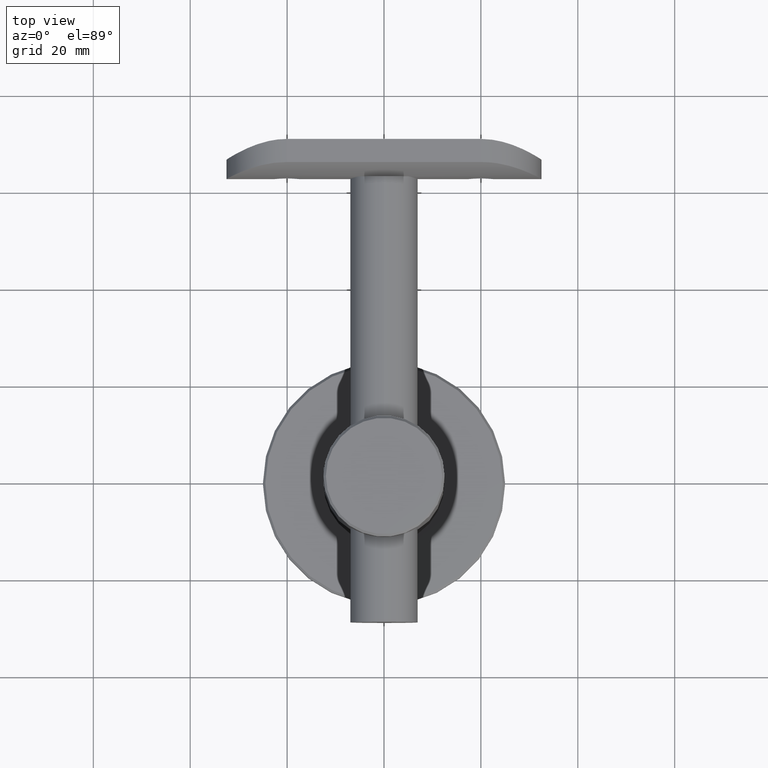
[diagram: clean part render]
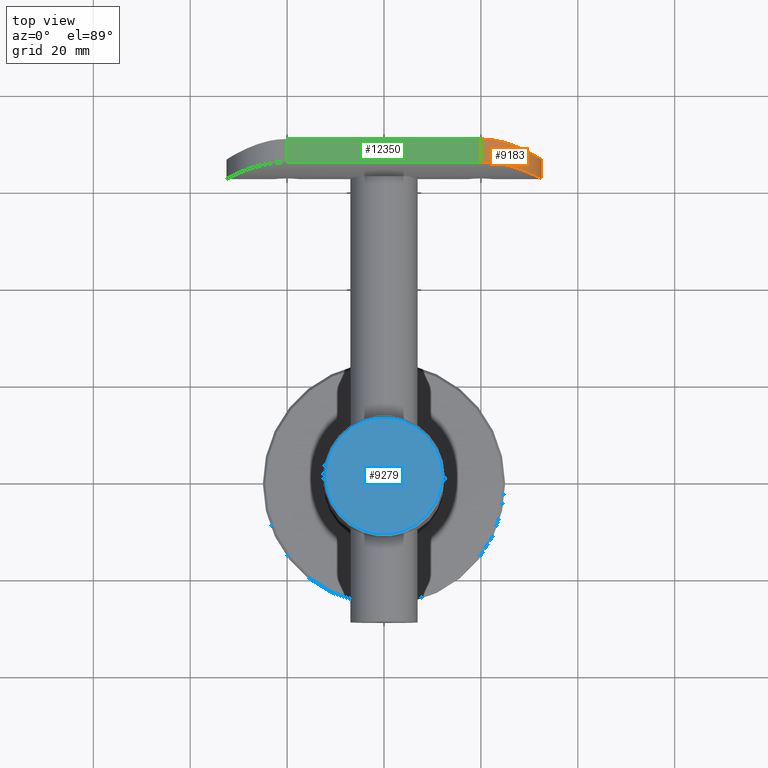
[diagram: same view with three faces highlighted in distinct colors, each labeled with its STEP entity id]
A machine part, top view with three faces highlighted in distinct colors.
Their STEP definitions:

[orange] entity #9183 — the highlighted cylindrical surface (partial cylindrical patch) has radius 12.5 mm, axis along (0, 1, 0).
#16 = DIRECTION ( 'NONE',  ( -3.645542167638208600E-016, 1.000000000000000000, -0.0000000000000000000 ) ) ;
#179 = DIRECTION ( 'NONE',  ( -1.000000000000000000, 3.816391647148975600E-016, 0.0000000000000000000 ) ) ;
#409 = CARTESIAN_POINT ( 'NONE',  ( 9.919985569846220500, 6.456967504733635900, -27.64830385797706600 ) ) ;
#608 = CARTESIAN_POINT ( 'NONE',  ( 5.620677554943399400, 4.744079628429568100, -31.19483348254707900 ) ) ;
#1202 = CARTESIAN_POINT ( 'NONE',  ( 12.50000000000000000, 3.318729470161015300, -20.00000000000000400 ) ) ;
#1655 = CARTESIAN_POINT ( 'NONE',  ( 0.0000000000000000000, 3.318729470161020200, -20.00000000000000400 ) ) ;
#1804 = EDGE_LOOP ( 'NONE', ( #3065, #16433, #5456, #2846 ) ) ;
#2360 = B_SPLINE_CURVE_WITH_KNOTS ( 'NONE', 3,
 ( #11487, #5457, #2720, #9941, #8501, #11370, #15876, #7143, #11312, #2783, #2616, #14447, #5584, #12933, #15636, #11427, #18656, #12825, #8380, #4064, #6902, #14272, #5525, #15758, #10000, #1202 ),
 .UNSPECIFIED., .F., .F.,
 ( 4, 2, 2, 2, 2, 2, 2, 2, 2, 2, 2, 2, 4 ),
 ( 2.353484509981722500E-018, 0.002483427128890327100, 0.003725140693335492400, 0.004966854257780656800, 0.007450281386670990800, 0.008691994951116157800, 0.009933708515561325700, 0.01117542208000649500, 0.01241713564445166100, 0.01490056277334198700, 0.01614227633778715600, 0.01738398990223232300, 0.01986741703112264800 ),
 .UNSPECIFIED. ) ;
#2616 = CARTESIAN_POINT ( 'NONE',  ( 7.643915563752460500, 1.185045859685578000, -29.89864509263436400 ) ) ;
#2720 = CARTESIAN_POINT ( 'NONE',  ( 1.664684350995175600, 0.04192139592814692100, -32.41608617209117700 ) ) ;
#2783 = CARTESIAN_POINT ( 'NONE',  ( 7.316861939614360800, 1.083062932609342200, -30.14291416132809700 ) ) ;
#2846 = ORIENTED_EDGE ( 'NONE', *, *, #17168, .F. ) ;
#3032 = VECTOR ( 'NONE', #8109, 1000.000000000000000 ) ;
#3065 = ORIENTED_EDGE ( 'NONE', *, *, #11550, .F. ) ;
#3266 = EDGE_CURVE ( 'NONE', #14128, #12480, #12227, .T. ) ;
#3282 = CARTESIAN_POINT ( 'NONE',  ( 2.903656776258744600, 4.195777031998702900, -32.16519419076993800 ) ) ;
#3469 = EDGE_CURVE ( 'NONE', #15708, #12480, #18811, .T. ) ;
#3538 = CARTESIAN_POINT ( 'NONE',  ( 3.307977677724412300, 4.255752225252754400, -32.06158553790278600 ) ) ;
#4064 = CARTESIAN_POINT ( 'NONE',  ( 11.68341459577140100, 2.871341540761537000, -24.46233648995672600 ) ) ;
#4503 = DIRECTION ( 'NONE',  ( 3.645542167638208600E-016, 1.000000000000000000, -0.0000000000000000000 ) ) ;
#4612 = CARTESIAN_POINT ( 'NONE',  ( 12.50000000000000200, 8.077208171562679300, -20.00000000000000400 ) ) ;
#4915 = CARTESIAN_POINT ( 'NONE',  ( 7.655030421865178300, 5.427483003039804500, -29.89001198582322200 ) ) ;
#5003 = CARTESIAN_POINT ( 'NONE',  ( 12.50000000000000000, 3.318729470161015300, -20.00000000000000400 ) ) ;
#5456 = ORIENTED_EDGE ( 'NONE', *, *, #3469, .F. ) ;
#5457 = CARTESIAN_POINT ( 'NONE',  ( 0.8406273536774225800, 6.479802046495397600E-017, -32.50000000000000700 ) ) ;
#5525 = CARTESIAN_POINT ( 'NONE',  ( 12.16969663537520900, 3.133117325917488500, -22.88442763853375800 ) ) ;
#5584 = CARTESIAN_POINT ( 'NONE',  ( 8.562866471435931700, 1.497495063479014500, -29.11525600394245600 ) ) ;
#6420 = CARTESIAN_POINT ( 'NONE',  ( 1.680376849083646400, 4.050750502668660300, -32.41446829867826600 ) ) ;
#6479 = CARTESIAN_POINT ( 'NONE',  ( 12.08472937843046900, 7.780467016947509900, -23.30072972297892200 ) ) ;
#6655 = CARTESIAN_POINT ( 'NONE',  ( 12.50000000000000000, 3.318729470161015300, -20.00000000000000400 ) ) ;
#6902 = CARTESIAN_POINT ( 'NONE',  ( 11.82318603278414100, 2.945306615177195800, -24.07833795785315400 ) ) ;
#7143 = CARTESIAN_POINT ( 'NONE',  ( 5.592058036261039300, 0.6162643484422571900, -31.20930733956447900 ) ) ;
#7695 = CARTESIAN_POINT ( 'NONE',  ( 7.329839308601785700, 5.304310467230259900, -30.13339322785992300 ) ) ;
#7826 = CARTESIAN_POINT ( 'NONE',  ( 10.82196766755579800, 6.962884092408006400, -26.30774772896644000 ) ) ;
#7896 = CARTESIAN_POINT ( 'NONE',  ( -2.483600444097239800E-016, 4.000000000000000000, -32.50000000000000000 ) ) ;
#8109 = DIRECTION ( 'NONE',  ( 3.645542167638208600E-016, 1.000000000000000000, -0.0000000000000000000 ) ) ;
#8380 = CARTESIAN_POINT ( 'NONE',  ( 11.21245238722106700, 2.629098992545239300, -25.58474759764792900 ) ) ;
#8501 = CARTESIAN_POINT ( 'NONE',  ( 3.277855041561021500, 0.2108776143917516500, -32.06970119788353200 ) ) ;
#8789 = CARTESIAN_POINT ( 'NONE',  ( -7.976909439802725400E-015, 25.19999999999999900, -32.50000000000000000 ) ) ;
#9177 = CARTESIAN_POINT ( 'NONE',  ( 11.83620638877005900, 7.607798498856689100, -24.10069751121964600 ) ) ;
#9183 = ADVANCED_FACE ( 'NONE', ( #18250 ), #15058, .T. ) ;
#9306 = CARTESIAN_POINT ( 'NONE',  ( 12.41450038045377500, 8.013930239834728300, -21.67799915308982500 ) ) ;
#9432 = CARTESIAN_POINT ( 'NONE',  ( 9.413556458363910200, 6.194533709361360600, -28.26249860773987500 ) ) ;
#9941 = CARTESIAN_POINT ( 'NONE',  ( 2.877492456091673900, 0.1615283928029670700, -32.17128298990891700 ) ) ;
#10000 = CARTESIAN_POINT ( 'NONE',  ( 12.49999999999999800, 3.318729470161022400, -20.84105733039345800 ) ) ;
#11312 = CARTESIAN_POINT ( 'NONE',  ( 6.305381315458570100, 0.7915044484486730700, -30.82371801999915900 ) ) ;
#11370 = CARTESIAN_POINT ( 'NONE',  ( 4.070717388981840700, 0.3277296730789947000, -31.82587335543210500 ) ) ;
#11427 = CARTESIAN_POINT ( 'NONE',  ( 9.910013130227611100, 2.028718244006081600, -27.62913782769574700 ) ) ;
#11486 = CARTESIAN_POINT ( 'NONE',  ( 1.209856822645558900E-015, 0.0000000000000000000, -32.50000000000000000 ) ) ;
#11487 = CARTESIAN_POINT ( 'NONE',  ( 1.209856822645558900E-015, 0.0000000000000000000, -32.50000000000000000 ) ) ;
#11515 = VECTOR ( 'NONE', #16, 1000.000000000000000 ) ;
#11550 = EDGE_CURVE ( 'NONE', #14128, #15943, #2360, .T. ) ;
#12101 = CARTESIAN_POINT ( 'NONE',  ( 6.328572668113502600, 4.954279635400569100, -30.80962434064442600 ) ) ;
#12227 = LINE ( 'NONE', #8789, #11515 ) ;
#12480 = VERTEX_POINT ( 'NONE', #14049 ) ;
#12825 = CARTESIAN_POINT ( 'NONE',  ( 10.83018612312571900, 2.440555194631701200, -26.29386951518687000 ) ) ;
#12845 = AXIS2_PLACEMENT_3D ( 'NONE', #1655, #4503, #179 ) ;
#12933 = CARTESIAN_POINT ( 'NONE',  ( 9.129107160068509000, 1.709771713892835000, -28.54809784016516300 ) ) ;
#13543 = CARTESIAN_POINT ( 'NONE',  ( 4.105999603327871000, 4.397476152548239100, -31.81377709549067100 ) ) ;
#13668 = CARTESIAN_POINT ( 'NONE',  ( 8.275097588008392800, 5.678865835620643800, -29.37734438678382900 ) ) ;
#14049 = CARTESIAN_POINT ( 'NONE',  ( -2.483600444097239800E-016, 4.000000000000000000, -32.50000000000000000 ) ) ;
#14128 = VERTEX_POINT ( 'NONE', #11486 ) ;
#14272 = CARTESIAN_POINT ( 'NONE',  ( 12.06660317602190300, 3.076343127531653300, -23.28902056191594400 ) ) ;
#14447 = CARTESIAN_POINT ( 'NONE',  ( 8.266035766619463500, 1.392015620549697200, -29.38537545976074500 ) ) ;
#15058 = CYLINDRICAL_SURFACE ( 'NONE', #12845, 12.50000000000000000 ) ;
#15145 = CARTESIAN_POINT ( 'NONE',  ( 4.492959243642648200, 4.477970880216998900, -31.67175631405216800 ) ) ;
#15209 = CARTESIAN_POINT ( 'NONE',  ( 12.50000000000000000, 8.077208171562679300, -20.84887060648279100 ) ) ;
#15636 = CARTESIAN_POINT ( 'NONE',  ( 9.398516132625633900, 1.816575251650669000, -28.25106046154296300 ) ) ;
#15708 = VERTEX_POINT ( 'NONE', #4612 ) ;
#15758 = CARTESIAN_POINT ( 'NONE',  ( 12.41600094213972300, 3.270152093552307200, -21.66693629175975400 ) ) ;
#15876 = CARTESIAN_POINT ( 'NONE',  ( 4.460191993434857100, 0.3948698794312861000, -31.68435314470301000 ) ) ;
#15943 = VERTEX_POINT ( 'NONE', #6655 ) ;
#16433 = ORIENTED_EDGE ( 'NONE', *, *, #3266, .T. ) ;
#16508 = LINE ( 'NONE', #5003, #3032 ) ;
#16550 = CARTESIAN_POINT ( 'NONE',  ( 11.20502510935213200, 7.199201472346334000, -25.59990303977420500 ) ) ;
#16609 = CARTESIAN_POINT ( 'NONE',  ( 0.8487943003396119000, 4.000000000000000000, -32.50000000000001400 ) ) ;
#16669 = CARTESIAN_POINT ( 'NONE',  ( 8.570261194392813300, 5.807054850030225700, -29.10818890720388600 ) ) ;
#17168 = EDGE_CURVE ( 'NONE', #15943, #15708, #16508, .T. ) ;
#18011 = CARTESIAN_POINT ( 'NONE',  ( 12.50000000000000200, 8.077208171562679300, -20.00000000000000400 ) ) ;
#18250 = FACE_OUTER_BOUND ( 'NONE', #1804, .T. ) ;
#18656 = CARTESIAN_POINT ( 'NONE',  ( 10.15326211524584500, 2.134602035805861100, -27.30241053714794600 ) ) ;
#18811 = B_SPLINE_CURVE_WITH_KNOTS ( 'NONE', 3,
 ( #18011, #15209, #9306, #6479, #9177, #16550, #7826, #409, #9432, #16669, #13668, #4915, #7695, #12101, #608, #15145, #13543, #3538, #3282, #6420, #16609, #7896 ),
 .UNSPECIFIED., .F., .F.,
 ( 4, 2, 2, 2, 2, 2, 2, 2, 2, 2, 4 ),
 ( 0.0000000000000000000, 0.002503829590647101500, 0.005007659181294203000, 0.007511488771941304500, 0.01001531836258840600, 0.01126723315791196300, 0.01251914795323552000, 0.01502297754388262600, 0.01627489233920618300, 0.01752680713452974300, 0.02003063672517685400 ),
 .UNSPECIFIED. ) ;

[blue] entity #9279 — the highlighted planar face has unit normal (0, 0, -1).
#748 = AXIS2_PLACEMENT_3D ( 'NONE', #4945, #15178, #3382 ) ;
#1914 = PLANE ( 'NONE',  #748 ) ;
#2044 = VERTEX_POINT ( 'NONE', #14464 ) ;
#2751 = DIRECTION ( 'NONE',  ( -1.000000000000000000, 0.0000000000000000000, 0.0000000000000000000 ) ) ;
#3382 = DIRECTION ( 'NONE',  ( -1.000000000000000000, 0.0000000000000000000, -0.0000000000000000000 ) ) ;
#4945 = CARTESIAN_POINT ( 'NONE',  ( 0.0000000000000000000, 0.0000000000000000000, 93.00000000000000000 ) ) ;
#9279 = ADVANCED_FACE ( 'NONE', ( #18890 ), #1914, .F. ) ;
#9738 = AXIS2_PLACEMENT_3D ( 'NONE', #17134, #18627, #2751 ) ;
#12534 = EDGE_CURVE ( 'NONE', #2044, #2044, #18420, .T. ) ;
#14356 = EDGE_LOOP ( 'NONE', ( #14916 ) ) ;
#14464 = CARTESIAN_POINT ( 'NONE',  ( -11.99999999999992400, 0.0000000000000000000, 93.00000000000000000 ) ) ;
#14916 = ORIENTED_EDGE ( 'NONE', *, *, #12534, .T. ) ;
#15178 = DIRECTION ( 'NONE',  ( 0.0000000000000000000, 0.0000000000000000000, -1.000000000000000000 ) ) ;
#17134 = CARTESIAN_POINT ( 'NONE',  ( 0.0000000000000000000, 0.0000000000000000000, 93.00000000000000000 ) ) ;
#18420 = CIRCLE ( 'NONE', #9738, 11.99999999999992400 ) ;
#18627 = DIRECTION ( 'NONE',  ( -0.0000000000000000000, -0.0000000000000000000, 1.000000000000000000 ) ) ;
#18890 = FACE_OUTER_BOUND ( 'NONE', #14356, .T. ) ;

[green] entity #12350 — the highlighted planar face has unit normal (0, 0, -1).
#947 = CARTESIAN_POINT ( 'NONE',  ( 12.50000000000000000, 3.318729470161012600, 20.00000000000000000 ) ) ;
#985 = DIRECTION ( 'NONE',  ( -0.0000000000000000000, -0.0000000000000000000, -1.000000000000000000 ) ) ;
#1082 = ORIENTED_EDGE ( 'NONE', *, *, #17168, .T. ) ;
#1715 = LINE ( 'NONE', #947, #2404 ) ;
#2233 = FACE_OUTER_BOUND ( 'NONE', #8943, .T. ) ;
#2404 = VECTOR ( 'NONE', #11170, 1000.000000000000000 ) ;
#2608 = EDGE_CURVE ( 'NONE', #7993, #6591, #1715, .T. ) ;
#3032 = VECTOR ( 'NONE', #8109, 1000.000000000000000 ) ;
#3487 = DIRECTION ( 'NONE',  ( -3.645542167638208600E-016, -1.000000000000000000, 0.0000000000000000000 ) ) ;
#3586 = CARTESIAN_POINT ( 'NONE',  ( 12.50000000000000000, 3.318729470161015300, 32.50000000000000000 ) ) ;
#4612 = CARTESIAN_POINT ( 'NONE',  ( 12.50000000000000200, 8.077208171562679300, -20.00000000000000400 ) ) ;
#4757 = EDGE_CURVE ( 'NONE', #7993, #15708, #16286, .T. ) ;
#5003 = CARTESIAN_POINT ( 'NONE',  ( 12.50000000000000000, 3.318729470161015300, -20.00000000000000400 ) ) ;
#6591 = VERTEX_POINT ( 'NONE', #7908 ) ;
#6655 = CARTESIAN_POINT ( 'NONE',  ( 12.50000000000000000, 3.318729470161015300, -20.00000000000000400 ) ) ;
#7561 = DIRECTION ( 'NONE',  ( -1.000000000000000000, 3.645542167638208600E-016, 0.0000000000000000000 ) ) ;
#7907 = PLANE ( 'NONE',  #17861 ) ;
#7908 = CARTESIAN_POINT ( 'NONE',  ( 12.50000000000000000, 3.318729470161015300, 20.00000000000000000 ) ) ;
#7993 = VERTEX_POINT ( 'NONE', #18535 ) ;
#8109 = DIRECTION ( 'NONE',  ( 3.645542167638208600E-016, 1.000000000000000000, -0.0000000000000000000 ) ) ;
#8943 = EDGE_LOOP ( 'NONE', ( #10274, #1082, #17520, #16159 ) ) ;
#9023 = DIRECTION ( 'NONE',  ( -0.0000000000000000000, -0.0000000000000000000, -1.000000000000000000 ) ) ;
#9380 = CARTESIAN_POINT ( 'NONE',  ( 12.50000000000000000, 3.318729470161015300, 32.50000000000000000 ) ) ;
#10274 = ORIENTED_EDGE ( 'NONE', *, *, #18838, .T. ) ;
#10604 = VECTOR ( 'NONE', #9023, 1000.000000000000000 ) ;
#11170 = DIRECTION ( 'NONE',  ( -3.645542167638208600E-016, -1.000000000000000000, -0.0000000000000000000 ) ) ;
#11246 = LINE ( 'NONE', #3586, #12152 ) ;
#12152 = VECTOR ( 'NONE', #985, 1000.000000000000000 ) ;
#12350 = ADVANCED_FACE ( 'NONE', ( #2233 ), #7907, .F. ) ;
#14791 = CARTESIAN_POINT ( 'NONE',  ( 12.50000000000000200, 8.077208171562679300, 32.50000000000000000 ) ) ;
#15708 = VERTEX_POINT ( 'NONE', #4612 ) ;
#15943 = VERTEX_POINT ( 'NONE', #6655 ) ;
#16159 = ORIENTED_EDGE ( 'NONE', *, *, #2608, .T. ) ;
#16286 = LINE ( 'NONE', #14791, #10604 ) ;
#16508 = LINE ( 'NONE', #5003, #3032 ) ;
#17168 = EDGE_CURVE ( 'NONE', #15943, #15708, #16508, .T. ) ;
#17520 = ORIENTED_EDGE ( 'NONE', *, *, #4757, .F. ) ;
#17861 = AXIS2_PLACEMENT_3D ( 'NONE', #9380, #7561, #3487 ) ;
#18535 = CARTESIAN_POINT ( 'NONE',  ( 12.50000000000000200, 8.077208171562679300, 20.00000000000000000 ) ) ;
#18838 = EDGE_CURVE ( 'NONE', #6591, #15943, #11246, .T. ) ;